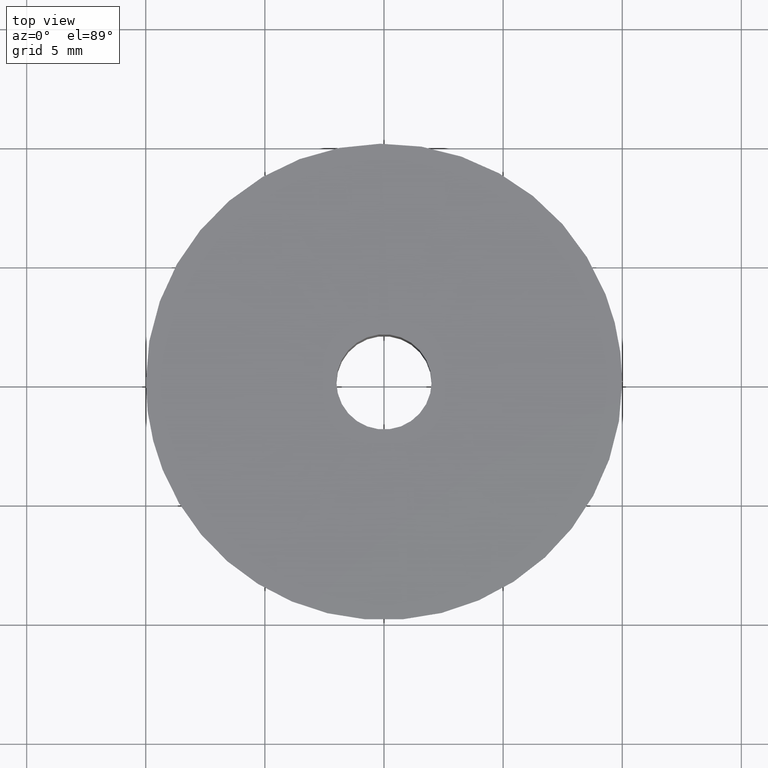
[diagram: clean part render]
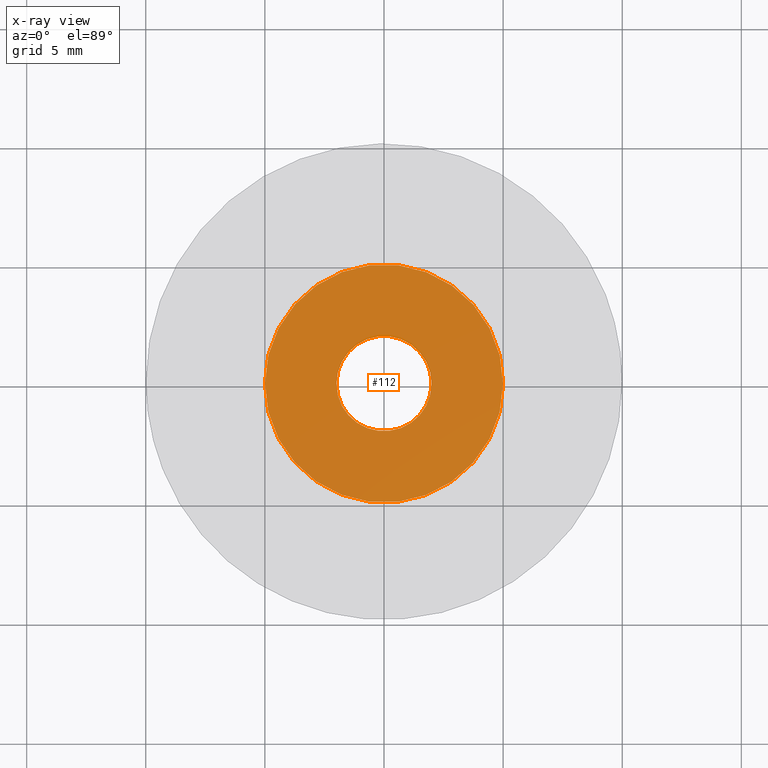
[diagram: x-ray — body ghosted, one internal face saturated and labeled with its STEP entity id]
A machine part, top view, then the same camera in x-ray: the body is ghosted and one INTERNAL B-rep face — a face not visible from any outside direction — is saturated and labeled: STEP entity #112.
In plain terms, the highlighted planar face has unit normal (0, 0, -1).
Its self-contained STEP definition (entity closure, byte-faithful):
#112=ADVANCED_FACE('',(#133,#134),#132,.F.);
#132=PLANE('',#341);
#133=FACE_OUTER_BOUND('',#342,.T.);
#134=FACE_BOUND('',#343,.T.);
#338=CARTESIAN_POINT('',(1.15000000000E+001,-1.03923048454E+001,7.80000000000E+000));
#339=DIRECTION('',(0.00000000000E+000,0.00000000000E+000,-1.00000000000E+000));
#340=DIRECTION('',(-1.00000000000E+000,0.00000000000E+000,0.00000000000E+000));
#341=AXIS2_PLACEMENT_3D('',#338,#339,#340);
#342=EDGE_LOOP('',(#498,#499,#500));
#343=EDGE_LOOP('',(#501,#502,#503));
#498=ORIENTED_EDGE('',*,*,#618,.F.);
#499=ORIENTED_EDGE('',*,*,#619,.F.);
#500=ORIENTED_EDGE('',*,*,#620,.F.);
#501=ORIENTED_EDGE('',*,*,#621,.T.);
#502=ORIENTED_EDGE('',*,*,#622,.T.);
#503=ORIENTED_EDGE('',*,*,#623,.T.);
#618=EDGE_CURVE('',#678,#679,#680,.T.);
#619=EDGE_CURVE('',#686,#678,#687,.T.);
#620=EDGE_CURVE('',#679,#686,#693,.T.);
#621=EDGE_CURVE('',#699,#700,#701,.T.);
#622=EDGE_CURVE('',#700,#707,#708,.T.);
#623=EDGE_CURVE('',#707,#699,#714,.T.);
#678=VERTEX_POINT('',#1084);
#679=VERTEX_POINT('',#1085);
#680=CIRCLE('',#1089,5.00000000000E+000);
#686=VERTEX_POINT('',#1090);
#687=CIRCLE('',#1094,5.00000000000E+000);
#693=CIRCLE('',#1098,5.00000000000E+000);
#699=VERTEX_POINT('',#1099);
#700=VERTEX_POINT('',#1100);
#701=CIRCLE('',#1104,1.99999986103E+000);
#707=VERTEX_POINT('',#1105);
#708=CIRCLE('',#1109,1.99999986103E+000);
#714=CIRCLE('',#1113,1.99999986103E+000);
#1084=CARTESIAN_POINT('',(5.90171136897E-001,-4.96504763614E+000,7.80000000000E+000));
#1085=CARTESIAN_POINT('',(-5.00000000000E+000,1.33226762955E-015,7.80000000000E+000));
#1086=CARTESIAN_POINT('',(6.48814335591E-013,2.96651592180E-013,7.80000000000E+000));
#1087=DIRECTION('',(2.93060328594E-015,8.85003917780E-016,-1.00000000000E+000));
#1088=DIRECTION('',(-1.00000000000E+000,-5.87169202149E-014,-2.93060328594E-015));
#1089=AXIS2_PLACEMENT_3D('',#1086,#1087,#1088);
#1090=CARTESIAN_POINT('',(-5.91029300183E-001,4.96494555522E+000,7.80000000000E+000));
#1091=CARTESIAN_POINT('',(6.48814335591E-013,2.96651592180E-013,7.80000000000E+000));
#1092=DIRECTION('',(2.93060328594E-015,8.85003917780E-016,-1.00000000000E+000));
#1093=DIRECTION('',(-1.00000000000E+000,-5.87169202149E-014,-2.93060328594E-015));
#1094=AXIS2_PLACEMENT_3D('',#1091,#1092,#1093);
#1095=CARTESIAN_POINT('',(6.48814335591E-013,2.96651592180E-013,7.80000000000E+000));
#1096=DIRECTION('',(2.93060328594E-015,8.85003917780E-016,-1.00000000000E+000));
#1097=DIRECTION('',(-1.00000000000E+000,-5.87169202149E-014,-2.93060328594E-015));
#1098=AXIS2_PLACEMENT_3D('',#1095,#1096,#1097);
#1099=CARTESIAN_POINT('',(-1.99999972206E+000,-1.90779816278E-014,7.80000000000E+000));
#1100=CARTESIAN_POINT('',(-2.36411768117E-001,1.98597792915E+000,7.80000000000E+000));
#1101=CARTESIAN_POINT('',(1.38967666485E-007,-1.30727725423E-007,7.80000000000E+000));
#1102=DIRECTION('',(8.88178440363E-016,6.28036983474E-016,-1.00000000000E+000));
#1103=DIRECTION('',(-1.00000000000E+000,6.53638585255E-008,-8.88178399312E-016));
#1104=AXIS2_PLACEMENT_3D('',#1101,#1102,#1103);
#1105=CARTESIAN_POINT('',(2.36068051675E-001,-1.98601910967E+000,7.80000000000E+000));
#1106=CARTESIAN_POINT('',(1.38967666485E-007,-1.30727725423E-007,7.80000000000E+000));
#1107=DIRECTION('',(8.88178440363E-016,6.28036983474E-016,-1.00000000000E+000));
#1108=DIRECTION('',(-1.00000000000E+000,6.53638585255E-008,-8.88178399312E-016));
#1109=AXIS2_PLACEMENT_3D('',#1106,#1107,#1108);
#1110=CARTESIAN_POINT('',(1.38967666485E-007,-1.30727725423E-007,7.80000000000E+000));
#1111=DIRECTION('',(8.88178440363E-016,6.28036983474E-016,-1.00000000000E+000));
#1112=DIRECTION('',(-1.00000000000E+000,6.53638585255E-008,-8.88178399312E-016));
#1113=AXIS2_PLACEMENT_3D('',#1110,#1111,#1112);